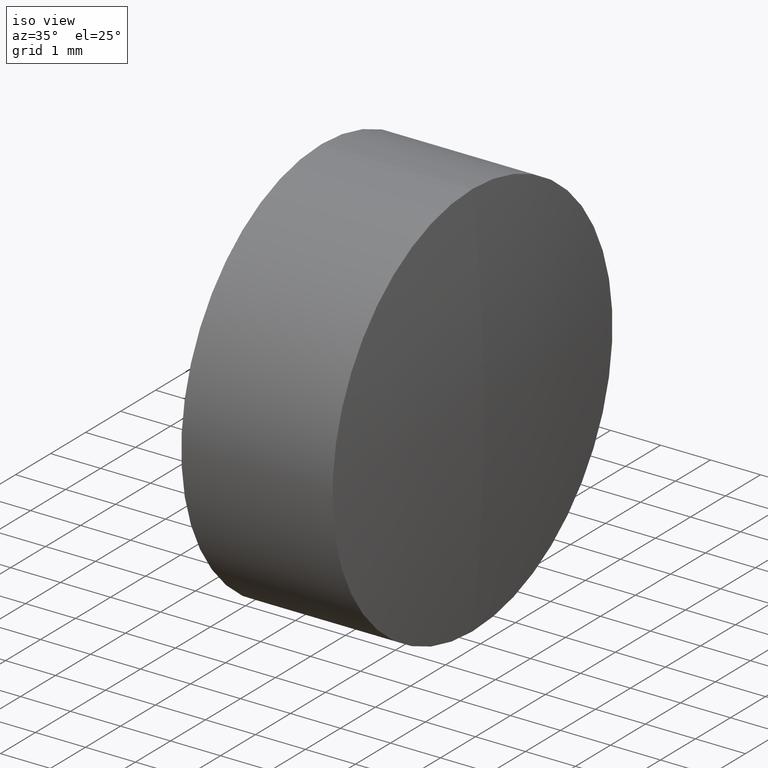
[diagram: clean part render]
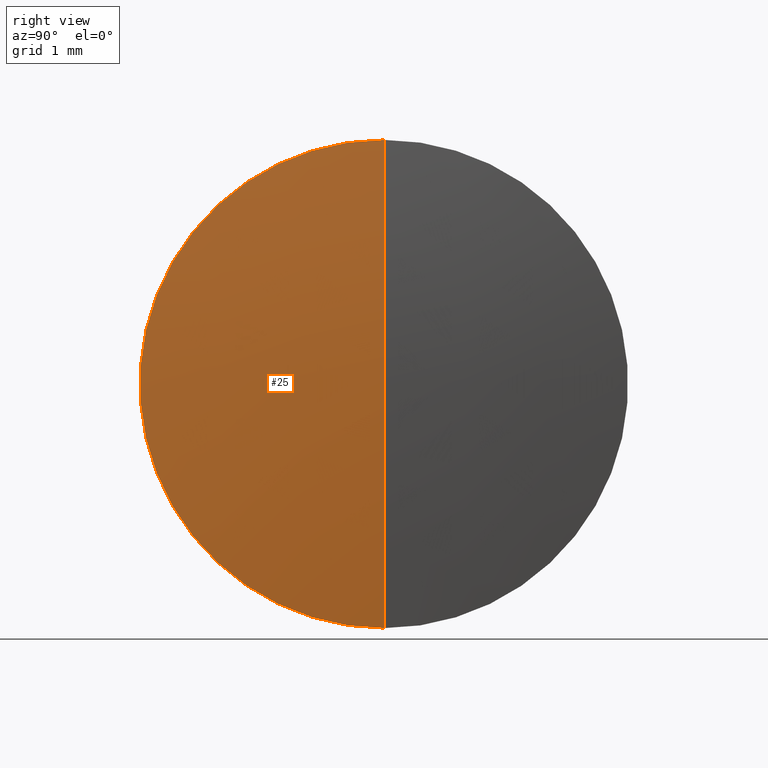
[diagram: tour spotlight — one face highlighted and labeled with its STEP entity id]
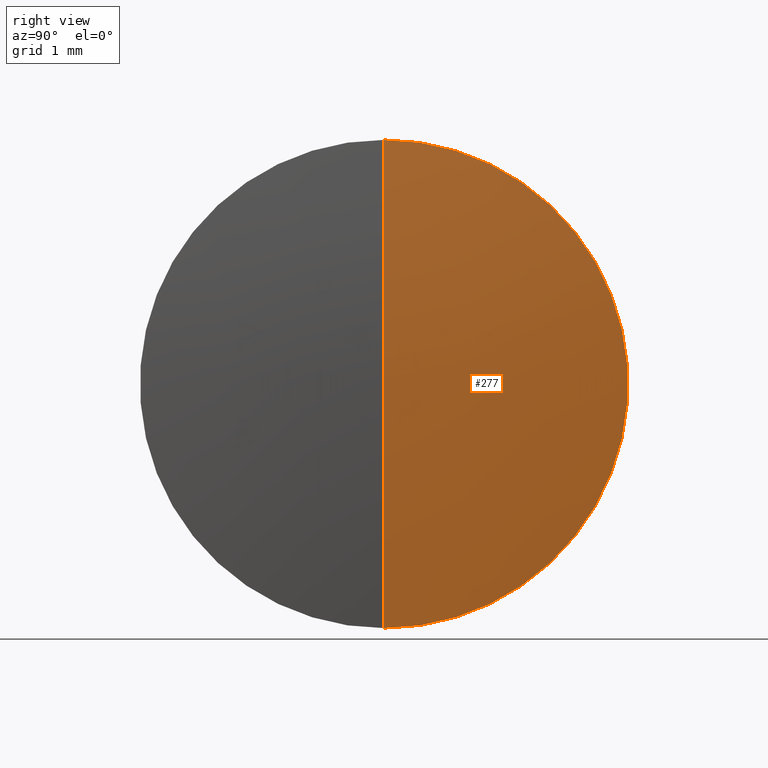
[diagram: tour spotlight — one face highlighted and labeled with its STEP entity id]
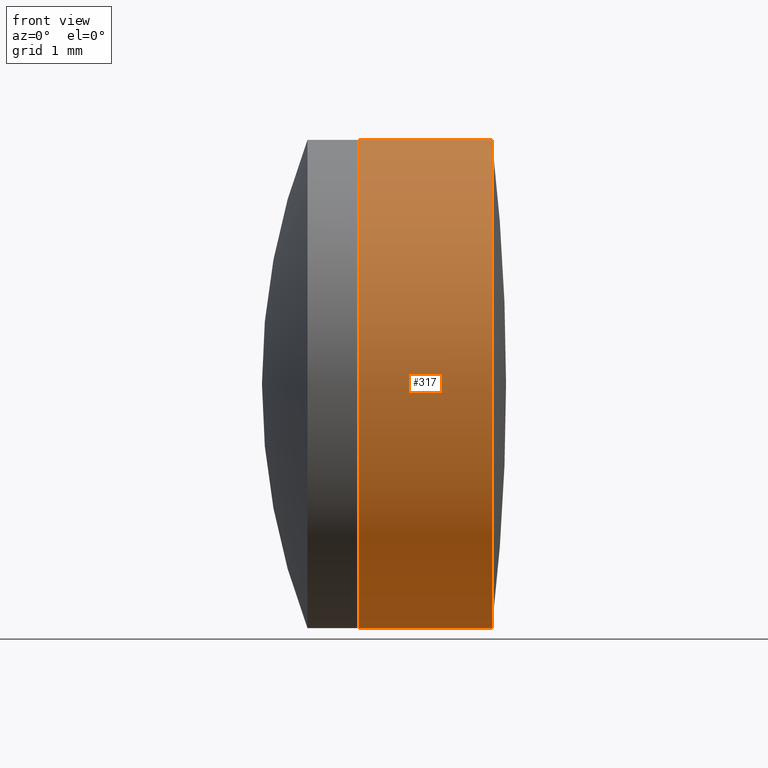
[diagram: tour spotlight — one face highlighted and labeled with its STEP entity id]
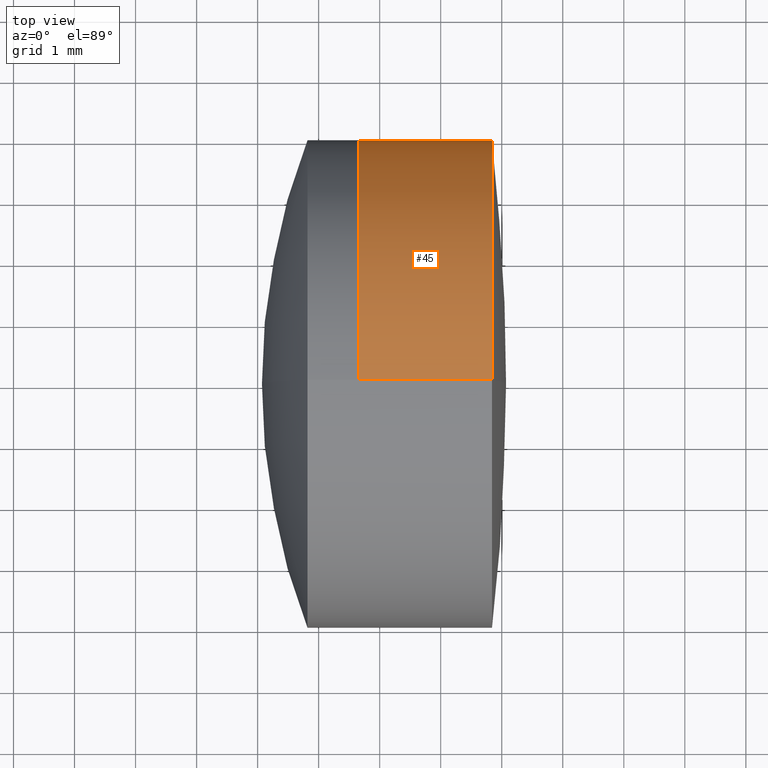
[diagram: tour spotlight — one face highlighted and labeled with its STEP entity id]
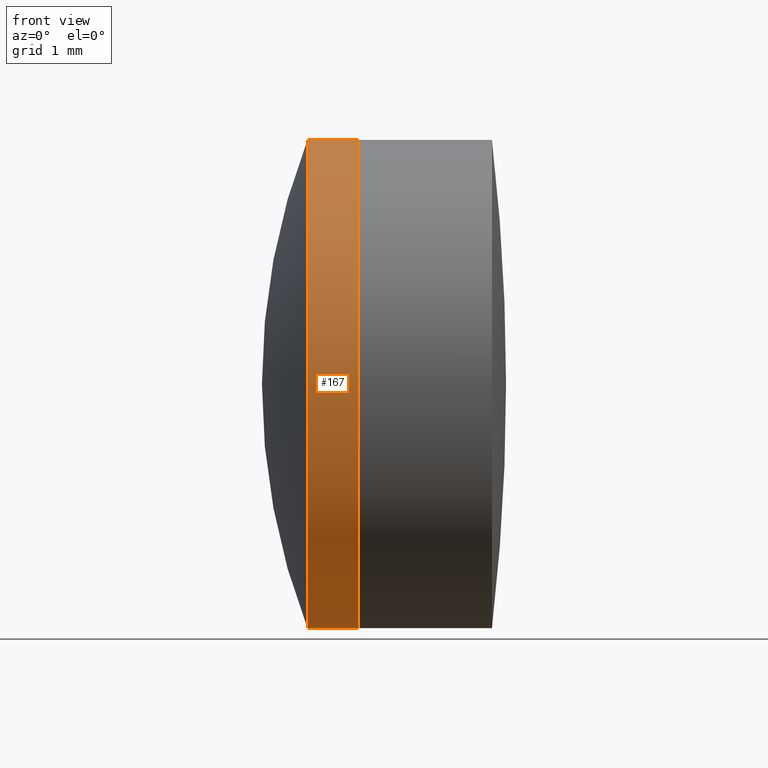
[diagram: tour spotlight — one face highlighted and labeled with its STEP entity id]
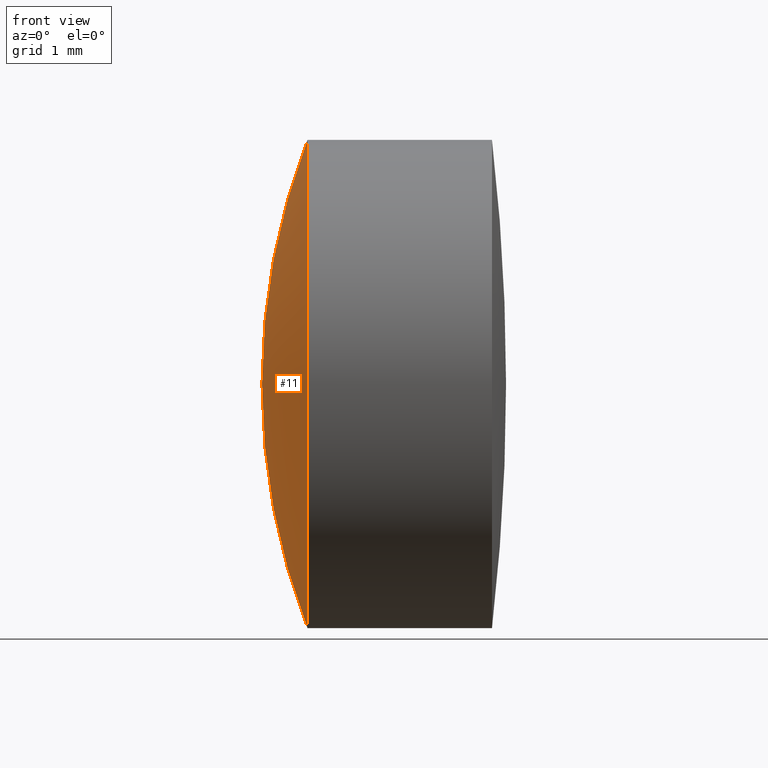
[diagram: tour spotlight — one face highlighted and labeled with its STEP entity id]
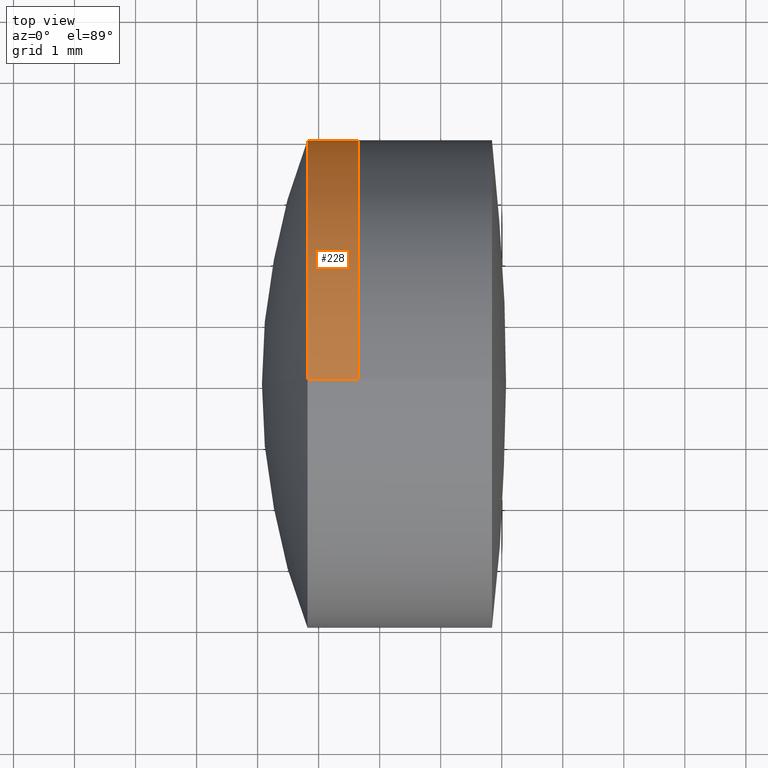
[diagram: tour spotlight — one face highlighted and labeled with its STEP entity id]
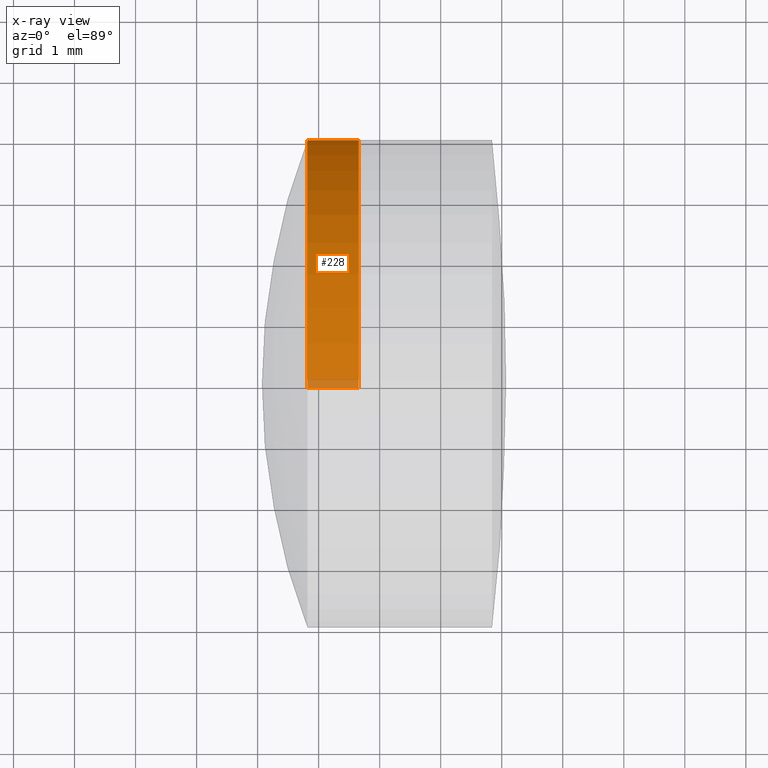
[diagram: x-ray of the same camera — body ghosted, this tour face saturated]
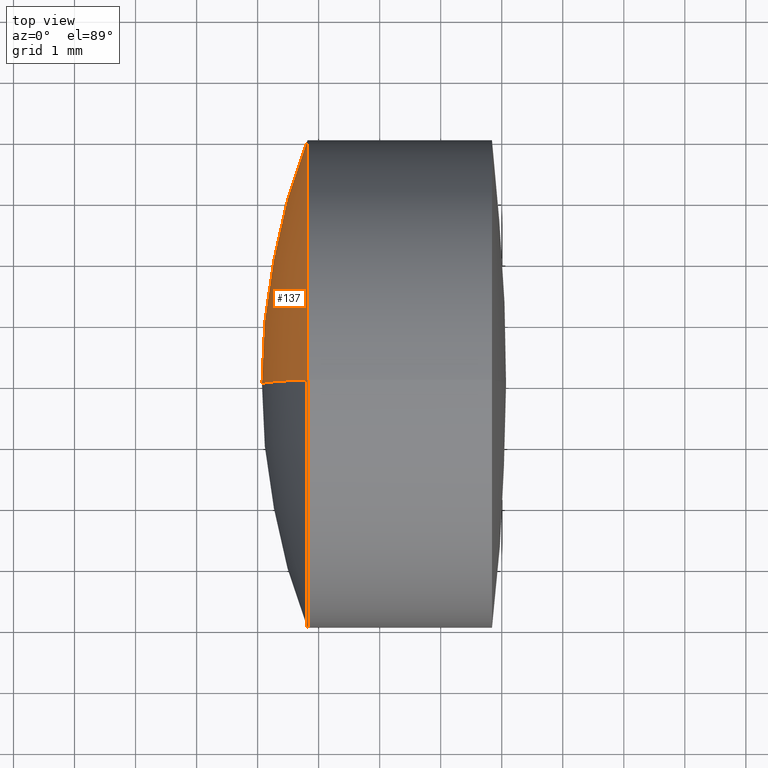
[diagram: tour spotlight — one face highlighted and labeled with its STEP entity id]
A machine part: a face-by-face anatomy tour. The part has 12 B-rep faces; the first image is the clean iso view, then the 8 largest visible faces are spotlighted one at a time (largest first), each with its STEP entity span.

Face 1 — right view, entity #25. In plain terms, the highlighted spherical surface has radius 34.8 mm.
Definition (entity closure, byte-faithful):
#18 = CIRCLE ( 'NONE', #174, 34.79999999999999700 ) ;
#25 = ADVANCED_FACE ( 'NONE', ( #175 ), #105, .T. ) ;
#31 = VERTEX_POINT ( 'NONE', #144 ) ;
#32 = CARTESIAN_POINT ( 'NONE',  ( 3.840174916095840300, 4.898587196589413800E-016, -4.000000000000000000 ) ) ;
#40 = CIRCLE ( 'NONE', #51, 4.000000000000000000 ) ;
#51 = AXIS2_PLACEMENT_3D ( 'NONE', #341, #291, #97 ) ;
#56 = DIRECTION ( 'NONE',  ( 0.0000000000000000000, 1.000000000000000000, 0.0000000000000000000 ) ) ;
#58 = CIRCLE ( 'NONE', #259, 34.79999999999999700 ) ;
#60 = DIRECTION ( 'NONE',  ( 0.0000000000000000000, 0.0000000000000000000, -1.000000000000000000 ) ) ;
#72 = AXIS2_PLACEMENT_3D ( 'NONE', #168, #56, #155 ) ;
#97 = DIRECTION ( 'NONE',  ( 0.0000000000000000000, 0.0000000000000000000, 1.000000000000000000 ) ) ;
#102 = EDGE_CURVE ( 'NONE', #31, #269, #18, .T. ) ;
#105 = SPHERICAL_SURFACE ( 'NONE', #72, 34.79999999999999700 ) ;
#120 = ORIENTED_EDGE ( 'NONE', *, *, #246, .F. ) ;
#124 = ORIENTED_EDGE ( 'NONE', *, *, #102, .T. ) ;
#132 = DIRECTION ( 'NONE',  ( 0.0000000000000000000, -1.000000000000000000, 0.0000000000000000000 ) ) ;
#144 = CARTESIAN_POINT ( 'NONE',  ( 4.070824329195886500, 0.0000000000000000000, 2.130885430516394500E-015 ) ) ;
#155 = DIRECTION ( 'NONE',  ( 0.0000000000000000000, 0.0000000000000000000, 1.000000000000000000 ) ) ;
#168 = CARTESIAN_POINT ( 'NONE',  ( -30.72917567080411100, 0.0000000000000000000, 0.0000000000000000000 ) ) ;
#174 = AXIS2_PLACEMENT_3D ( 'NONE', #342, #132, #60 ) ;
#175 = FACE_OUTER_BOUND ( 'NONE', #324, .T. ) ;
#177 = DIRECTION ( 'NONE',  ( 0.0000000000000000000, -1.224646799147353200E-016, 1.000000000000000000 ) ) ;
#220 = CARTESIAN_POINT ( 'NONE',  ( -30.72917567080411100, 0.0000000000000000000, 0.0000000000000000000 ) ) ;
#229 = EDGE_CURVE ( 'NONE', #257, #269, #40, .T. ) ;
#242 = ORIENTED_EDGE ( 'NONE', *, *, #229, .F. ) ;
#246 = EDGE_CURVE ( 'NONE', #31, #257, #58, .T. ) ;
#257 = VERTEX_POINT ( 'NONE', #32 ) ;
#259 = AXIS2_PLACEMENT_3D ( 'NONE', #220, #289, #177 ) ;
#269 = VERTEX_POINT ( 'NONE', #339 ) ;
#289 = DIRECTION ( 'NONE',  ( -0.0000000000000000000, 1.000000000000000000, 1.224646799147353200E-016 ) ) ;
#291 = DIRECTION ( 'NONE',  ( -1.000000000000000000, -0.0000000000000000000, -0.0000000000000000000 ) ) ;
#324 = EDGE_LOOP ( 'NONE', ( #120, #124, #242 ) ) ;
#339 = CARTESIAN_POINT ( 'NONE',  ( 3.840174916095840300, 0.0000000000000000000, 4.000000000000000000 ) ) ;
#341 = CARTESIAN_POINT ( 'NONE',  ( 3.840174916095840300, 0.0000000000000000000, 0.0000000000000000000 ) ) ;
#342 = CARTESIAN_POINT ( 'NONE',  ( -30.72917567080411100, 0.0000000000000000000, 0.0000000000000000000 ) ) ;

Face 2 — right view, entity #277. In plain terms, the highlighted spherical surface has radius 34.8 mm.
Definition (entity closure, byte-faithful):
#18 = CIRCLE ( 'NONE', #174, 34.79999999999999700 ) ;
#29 = CIRCLE ( 'NONE', #140, 4.000000000000000000 ) ;
#31 = VERTEX_POINT ( 'NONE', #144 ) ;
#32 = CARTESIAN_POINT ( 'NONE',  ( 3.840174916095840300, 4.898587196589413800E-016, -4.000000000000000000 ) ) ;
#58 = CIRCLE ( 'NONE', #259, 34.79999999999999700 ) ;
#60 = DIRECTION ( 'NONE',  ( 0.0000000000000000000, 0.0000000000000000000, -1.000000000000000000 ) ) ;
#69 = AXIS2_PLACEMENT_3D ( 'NONE', #299, #133, #275 ) ;
#102 = EDGE_CURVE ( 'NONE', #31, #269, #18, .T. ) ;
#127 = DIRECTION ( 'NONE',  ( -1.000000000000000000, -0.0000000000000000000, -0.0000000000000000000 ) ) ;
#132 = DIRECTION ( 'NONE',  ( 0.0000000000000000000, -1.000000000000000000, 0.0000000000000000000 ) ) ;
#133 = DIRECTION ( 'NONE',  ( 0.0000000000000000000, 1.000000000000000000, 0.0000000000000000000 ) ) ;
#140 = AXIS2_PLACEMENT_3D ( 'NONE', #305, #127, #297 ) ;
#144 = CARTESIAN_POINT ( 'NONE',  ( 4.070824329195886500, 0.0000000000000000000, 2.130885430516394500E-015 ) ) ;
#173 = ORIENTED_EDGE ( 'NONE', *, *, #246, .T. ) ;
#174 = AXIS2_PLACEMENT_3D ( 'NONE', #342, #132, #60 ) ;
#177 = DIRECTION ( 'NONE',  ( 0.0000000000000000000, -1.224646799147353200E-016, 1.000000000000000000 ) ) ;
#182 = SPHERICAL_SURFACE ( 'NONE', #69, 34.79999999999999700 ) ;
#186 = EDGE_CURVE ( 'NONE', #269, #257, #29, .T. ) ;
#193 = ORIENTED_EDGE ( 'NONE', *, *, #186, .F. ) ;
#220 = CARTESIAN_POINT ( 'NONE',  ( -30.72917567080411100, 0.0000000000000000000, 0.0000000000000000000 ) ) ;
#246 = EDGE_CURVE ( 'NONE', #31, #257, #58, .T. ) ;
#255 = FACE_OUTER_BOUND ( 'NONE', #307, .T. ) ;
#257 = VERTEX_POINT ( 'NONE', #32 ) ;
#259 = AXIS2_PLACEMENT_3D ( 'NONE', #220, #289, #177 ) ;
#269 = VERTEX_POINT ( 'NONE', #339 ) ;
#275 = DIRECTION ( 'NONE',  ( 0.0000000000000000000, 0.0000000000000000000, 1.000000000000000000 ) ) ;
#277 = ADVANCED_FACE ( 'NONE', ( #255 ), #182, .T. ) ;
#289 = DIRECTION ( 'NONE',  ( -0.0000000000000000000, 1.000000000000000000, 1.224646799147353200E-016 ) ) ;
#297 = DIRECTION ( 'NONE',  ( 0.0000000000000000000, 0.0000000000000000000, 1.000000000000000000 ) ) ;
#299 = CARTESIAN_POINT ( 'NONE',  ( -30.72917567080411100, 0.0000000000000000000, 0.0000000000000000000 ) ) ;
#305 = CARTESIAN_POINT ( 'NONE',  ( 3.840174916095840300, 0.0000000000000000000, 0.0000000000000000000 ) ) ;
#307 = EDGE_LOOP ( 'NONE', ( #327, #173, #193 ) ) ;
#327 = ORIENTED_EDGE ( 'NONE', *, *, #102, .F. ) ;
#339 = CARTESIAN_POINT ( 'NONE',  ( 3.840174916095840300, 0.0000000000000000000, 4.000000000000000000 ) ) ;
#342 = CARTESIAN_POINT ( 'NONE',  ( -30.72917567080411100, 0.0000000000000000000, 0.0000000000000000000 ) ) ;

Face 3 — front view, entity #317. In plain terms, the highlighted cylindrical surface (partial cylindrical patch) has radius 4 mm, axis along (-1, -0, -0).
Definition (entity closure, byte-faithful):
#2 = CARTESIAN_POINT ( 'NONE',  ( 1.655750400079075000, 4.898587196589417800E-016, -4.000000000000003600 ) ) ;
#3 = EDGE_LOOP ( 'NONE', ( #89, #278, #149, #163 ) ) ;
#17 = DIRECTION ( 'NONE',  ( 0.0000000000000000000, 0.0000000000000000000, 1.000000000000000000 ) ) ;
#32 = CARTESIAN_POINT ( 'NONE',  ( 3.840174916095840300, 4.898587196589413800E-016, -4.000000000000000000 ) ) ;
#40 = CIRCLE ( 'NONE', #51, 4.000000000000000000 ) ;
#42 = EDGE_CURVE ( 'NONE', #269, #263, #266, .T. ) ;
#44 = AXIS2_PLACEMENT_3D ( 'NONE', #198, #231, #88 ) ;
#51 = AXIS2_PLACEMENT_3D ( 'NONE', #341, #291, #97 ) ;
#66 = CYLINDRICAL_SURFACE ( 'NONE', #44, 4.000000000000000900 ) ;
#78 = CARTESIAN_POINT ( 'NONE',  ( -0.5519199926577972300, 0.0000000000000000000, 4.000000000000000900 ) ) ;
#81 = DIRECTION ( 'NONE',  ( -1.000000000000000000, -0.0000000000000000000, -0.0000000000000000000 ) ) ;
#88 = DIRECTION ( 'NONE',  ( 0.0000000000000000000, 0.0000000000000000000, 1.000000000000000000 ) ) ;
#89 = ORIENTED_EDGE ( 'NONE', *, *, #171, .F. ) ;
#95 = DIRECTION ( 'NONE',  ( -1.000000000000000000, -0.0000000000000000000, -0.0000000000000000000 ) ) ;
#97 = DIRECTION ( 'NONE',  ( 0.0000000000000000000, 0.0000000000000000000, 1.000000000000000000 ) ) ;
#128 = FACE_OUTER_BOUND ( 'NONE', #3, .T. ) ;
#131 = EDGE_CURVE ( 'NONE', #135, #263, #158, .T. ) ;
#135 = VERTEX_POINT ( 'NONE', #2 ) ;
#149 = ORIENTED_EDGE ( 'NONE', *, *, #42, .T. ) ;
#158 = CIRCLE ( 'NONE', #326, 4.000000000000001800 ) ;
#163 = ORIENTED_EDGE ( 'NONE', *, *, #131, .F. ) ;
#171 = EDGE_CURVE ( 'NONE', #257, #135, #330, .T. ) ;
#195 = CARTESIAN_POINT ( 'NONE',  ( 1.655750400079075000, 0.0000000000000000000, 0.0000000000000000000 ) ) ;
#198 = CARTESIAN_POINT ( 'NONE',  ( -0.5519199926577972300, 0.0000000000000000000, 0.0000000000000000000 ) ) ;
#229 = EDGE_CURVE ( 'NONE', #257, #269, #40, .T. ) ;
#231 = DIRECTION ( 'NONE',  ( -1.000000000000000000, -0.0000000000000000000, -0.0000000000000000000 ) ) ;
#257 = VERTEX_POINT ( 'NONE', #32 ) ;
#263 = VERTEX_POINT ( 'NONE', #294 ) ;
#266 = LINE ( 'NONE', #78, #322 ) ;
#269 = VERTEX_POINT ( 'NONE', #339 ) ;
#278 = ORIENTED_EDGE ( 'NONE', *, *, #229, .T. ) ;
#291 = DIRECTION ( 'NONE',  ( -1.000000000000000000, -0.0000000000000000000, -0.0000000000000000000 ) ) ;
#294 = CARTESIAN_POINT ( 'NONE',  ( 1.655750400079075000, 0.0000000000000000000, 4.000000000000003600 ) ) ;
#310 = CARTESIAN_POINT ( 'NONE',  ( -0.5519199926577972300, 4.898587196589413800E-016, -4.000000000000000900 ) ) ;
#317 = ADVANCED_FACE ( 'NONE', ( #128 ), #66, .T. ) ;
#322 = VECTOR ( 'NONE', #328, 1000.000000000000000 ) ;
#326 = AXIS2_PLACEMENT_3D ( 'NONE', #195, #95, #17 ) ;
#328 = DIRECTION ( 'NONE',  ( -1.000000000000000000, -0.0000000000000000000, -0.0000000000000000000 ) ) ;
#330 = LINE ( 'NONE', #310, #337 ) ;
#337 = VECTOR ( 'NONE', #81, 1000.000000000000000 ) ;
#339 = CARTESIAN_POINT ( 'NONE',  ( 3.840174916095840300, 0.0000000000000000000, 4.000000000000000000 ) ) ;
#341 = CARTESIAN_POINT ( 'NONE',  ( 3.840174916095840300, 0.0000000000000000000, 0.0000000000000000000 ) ) ;

Face 4 — top view, entity #45. In plain terms, the highlighted cylindrical surface (partial cylindrical patch) has radius 4 mm, axis along (-1, -0, -0).
Definition (entity closure, byte-faithful):
#2 = CARTESIAN_POINT ( 'NONE',  ( 1.655750400079075000, 4.898587196589417800E-016, -4.000000000000003600 ) ) ;
#27 = DIRECTION ( 'NONE',  ( 0.0000000000000000000, 0.0000000000000000000, 1.000000000000000000 ) ) ;
#29 = CIRCLE ( 'NONE', #140, 4.000000000000000000 ) ;
#32 = CARTESIAN_POINT ( 'NONE',  ( 3.840174916095840300, 4.898587196589413800E-016, -4.000000000000000000 ) ) ;
#35 = FACE_OUTER_BOUND ( 'NONE', #236, .T. ) ;
#42 = EDGE_CURVE ( 'NONE', #269, #263, #266, .T. ) ;
#45 = ADVANCED_FACE ( 'NONE', ( #35 ), #96, .T. ) ;
#54 = EDGE_CURVE ( 'NONE', #263, #135, #290, .T. ) ;
#59 = ORIENTED_EDGE ( 'NONE', *, *, #42, .F. ) ;
#78 = CARTESIAN_POINT ( 'NONE',  ( -0.5519199926577972300, 0.0000000000000000000, 4.000000000000000900 ) ) ;
#80 = DIRECTION ( 'NONE',  ( 0.0000000000000000000, 0.0000000000000000000, 1.000000000000000000 ) ) ;
#81 = DIRECTION ( 'NONE',  ( -1.000000000000000000, -0.0000000000000000000, -0.0000000000000000000 ) ) ;
#96 = CYLINDRICAL_SURFACE ( 'NONE', #145, 4.000000000000000900 ) ;
#126 = CARTESIAN_POINT ( 'NONE',  ( 1.655750400079075000, 0.0000000000000000000, 0.0000000000000000000 ) ) ;
#127 = DIRECTION ( 'NONE',  ( -1.000000000000000000, -0.0000000000000000000, -0.0000000000000000000 ) ) ;
#135 = VERTEX_POINT ( 'NONE', #2 ) ;
#140 = AXIS2_PLACEMENT_3D ( 'NONE', #305, #127, #297 ) ;
#142 = ORIENTED_EDGE ( 'NONE', *, *, #186, .T. ) ;
#145 = AXIS2_PLACEMENT_3D ( 'NONE', #235, #216, #27 ) ;
#159 = AXIS2_PLACEMENT_3D ( 'NONE', #126, #334, #80 ) ;
#171 = EDGE_CURVE ( 'NONE', #257, #135, #330, .T. ) ;
#186 = EDGE_CURVE ( 'NONE', #269, #257, #29, .T. ) ;
#213 = ORIENTED_EDGE ( 'NONE', *, *, #171, .T. ) ;
#216 = DIRECTION ( 'NONE',  ( -1.000000000000000000, -0.0000000000000000000, -0.0000000000000000000 ) ) ;
#235 = CARTESIAN_POINT ( 'NONE',  ( -0.5519199926577972300, 0.0000000000000000000, 0.0000000000000000000 ) ) ;
#236 = EDGE_LOOP ( 'NONE', ( #142, #213, #308, #59 ) ) ;
#257 = VERTEX_POINT ( 'NONE', #32 ) ;
#263 = VERTEX_POINT ( 'NONE', #294 ) ;
#266 = LINE ( 'NONE', #78, #322 ) ;
#269 = VERTEX_POINT ( 'NONE', #339 ) ;
#290 = CIRCLE ( 'NONE', #159, 4.000000000000001800 ) ;
#294 = CARTESIAN_POINT ( 'NONE',  ( 1.655750400079075000, 0.0000000000000000000, 4.000000000000003600 ) ) ;
#297 = DIRECTION ( 'NONE',  ( 0.0000000000000000000, 0.0000000000000000000, 1.000000000000000000 ) ) ;
#305 = CARTESIAN_POINT ( 'NONE',  ( 3.840174916095840300, 0.0000000000000000000, 0.0000000000000000000 ) ) ;
#308 = ORIENTED_EDGE ( 'NONE', *, *, #54, .F. ) ;
#310 = CARTESIAN_POINT ( 'NONE',  ( -0.5519199926577972300, 4.898587196589413800E-016, -4.000000000000000900 ) ) ;
#322 = VECTOR ( 'NONE', #328, 1000.000000000000000 ) ;
#328 = DIRECTION ( 'NONE',  ( -1.000000000000000000, -0.0000000000000000000, -0.0000000000000000000 ) ) ;
#330 = LINE ( 'NONE', #310, #337 ) ;
#334 = DIRECTION ( 'NONE',  ( -1.000000000000000000, -0.0000000000000000000, -0.0000000000000000000 ) ) ;
#337 = VECTOR ( 'NONE', #81, 1000.000000000000000 ) ;
#339 = CARTESIAN_POINT ( 'NONE',  ( 3.840174916095840300, 0.0000000000000000000, 4.000000000000000000 ) ) ;

Face 5 — front view, entity #167. In plain terms, the highlighted cylindrical surface (partial cylindrical patch) has radius 4 mm, axis along (-1, -0, -0).
Definition (entity closure, byte-faithful):
#6 = VECTOR ( 'NONE', #219, 1000.000000000000000 ) ;
#12 = AXIS2_PLACEMENT_3D ( 'NONE', #250, #165, #190 ) ;
#23 = EDGE_CURVE ( 'NONE', #208, #117, #199, .T. ) ;
#28 = ORIENTED_EDGE ( 'NONE', *, *, #153, .T. ) ;
#38 = CARTESIAN_POINT ( 'NONE',  ( -9.702612178336682500, 4.898587196589412800E-016, -4.000000000000000000 ) ) ;
#52 = CARTESIAN_POINT ( 'NONE',  ( 0.8165981388907876900, 0.0000000000000000000, -4.000000000000000000 ) ) ;
#61 = LINE ( 'NONE', #336, #122 ) ;
#71 = CARTESIAN_POINT ( 'NONE',  ( 1.655750400079076800, 0.0000000000000000000, 4.000000000000000000 ) ) ;
#82 = ORIENTED_EDGE ( 'NONE', *, *, #201, .F. ) ;
#94 = VERTEX_POINT ( 'NONE', #286 ) ;
#107 = EDGE_CURVE ( 'NONE', #208, #321, #346, .T. ) ;
#112 = CARTESIAN_POINT ( 'NONE',  ( 1.655750400079076800, 4.898587196589412800E-016, -4.000000000000000000 ) ) ;
#117 = VERTEX_POINT ( 'NONE', #71 ) ;
#122 = VECTOR ( 'NONE', #191, 1000.000000000000000 ) ;
#146 = FACE_OUTER_BOUND ( 'NONE', #261, .T. ) ;
#153 = EDGE_CURVE ( 'NONE', #117, #94, #61, .T. ) ;
#157 = DIRECTION ( 'NONE',  ( 0.0000000000000000000, 0.0000000000000000000, 1.000000000000000000 ) ) ;
#165 = DIRECTION ( 'NONE',  ( -1.000000000000000000, -0.0000000000000000000, -0.0000000000000000000 ) ) ;
#167 = ADVANCED_FACE ( 'NONE', ( #146 ), #285, .T. ) ;
#188 = ORIENTED_EDGE ( 'NONE', *, *, #23, .T. ) ;
#189 = CIRCLE ( 'NONE', #205, 4.000000000000000900 ) ;
#190 = DIRECTION ( 'NONE',  ( 0.0000000000000000000, 0.0000000000000000000, 1.000000000000000000 ) ) ;
#191 = DIRECTION ( 'NONE',  ( -1.000000000000000000, -0.0000000000000000000, -0.0000000000000000000 ) ) ;
#199 = CIRCLE ( 'NONE', #12, 4.000000000000000000 ) ;
#201 = EDGE_CURVE ( 'NONE', #321, #94, #189, .T. ) ;
#205 = AXIS2_PLACEMENT_3D ( 'NONE', #238, #241, #157 ) ;
#208 = VERTEX_POINT ( 'NONE', #112 ) ;
#219 = DIRECTION ( 'NONE',  ( -1.000000000000000000, -0.0000000000000000000, -0.0000000000000000000 ) ) ;
#238 = CARTESIAN_POINT ( 'NONE',  ( 0.8165981388907876900, 0.0000000000000000000, 0.0000000000000000000 ) ) ;
#241 = DIRECTION ( 'NONE',  ( -1.000000000000000000, -0.0000000000000000000, -0.0000000000000000000 ) ) ;
#250 = CARTESIAN_POINT ( 'NONE',  ( 1.655750400079076800, 0.0000000000000000000, 0.0000000000000000000 ) ) ;
#261 = EDGE_LOOP ( 'NONE', ( #274, #188, #28, #82 ) ) ;
#271 = AXIS2_PLACEMENT_3D ( 'NONE', #301, #314, #325 ) ;
#274 = ORIENTED_EDGE ( 'NONE', *, *, #107, .F. ) ;
#285 = CYLINDRICAL_SURFACE ( 'NONE', #271, 4.000000000000000000 ) ;
#286 = CARTESIAN_POINT ( 'NONE',  ( 0.8165981388907876900, -4.898587196589412800E-016, 4.000000000000000000 ) ) ;
#301 = CARTESIAN_POINT ( 'NONE',  ( -9.702612178336682500, 0.0000000000000000000, 0.0000000000000000000 ) ) ;
#314 = DIRECTION ( 'NONE',  ( -1.000000000000000000, -0.0000000000000000000, -0.0000000000000000000 ) ) ;
#321 = VERTEX_POINT ( 'NONE', #52 ) ;
#325 = DIRECTION ( 'NONE',  ( 0.0000000000000000000, 0.0000000000000000000, 1.000000000000000000 ) ) ;
#336 = CARTESIAN_POINT ( 'NONE',  ( -9.702612178336682500, 0.0000000000000000000, 4.000000000000000000 ) ) ;
#346 = LINE ( 'NONE', #38, #6 ) ;

Face 6 — front view, entity #11. In plain terms, the highlighted spherical surface has radius 11.1 mm.
Definition (entity closure, byte-faithful):
#5 = CARTESIAN_POINT ( 'NONE',  ( 11.17082432919588400, 0.0000000000000000000, 2.248175378683471300E-016 ) ) ;
#7 = VERTEX_POINT ( 'NONE', #234 ) ;
#11 = ADVANCED_FACE ( 'NONE', ( #316 ), #16, .T. ) ;
#13 = ORIENTED_EDGE ( 'NONE', *, *, #343, .T. ) ;
#15 = CIRCLE ( 'NONE', #161, 11.10000000000000000 ) ;
#16 = SPHERICAL_SURFACE ( 'NONE', #303, 11.10000000000000000 ) ;
#52 = CARTESIAN_POINT ( 'NONE',  ( 0.8165981388907876900, 0.0000000000000000000, -4.000000000000000000 ) ) ;
#57 = DIRECTION ( 'NONE',  ( -0.0000000000000000000, -1.000000000000000000, -0.0000000000000000000 ) ) ;
#73 = DIRECTION ( 'NONE',  ( 0.0000000000000000000, 0.0000000000000000000, -1.000000000000000000 ) ) ;
#83 = CARTESIAN_POINT ( 'NONE',  ( 11.17082432919588400, 0.0000000000000000000, 2.248175378683471300E-016 ) ) ;
#91 = EDGE_CURVE ( 'NONE', #321, #7, #15, .T. ) ;
#94 = VERTEX_POINT ( 'NONE', #286 ) ;
#156 = DIRECTION ( 'NONE',  ( 0.0000000000000000000, 1.000000000000000000, -0.0000000000000000000 ) ) ;
#157 = DIRECTION ( 'NONE',  ( 0.0000000000000000000, 0.0000000000000000000, 1.000000000000000000 ) ) ;
#161 = AXIS2_PLACEMENT_3D ( 'NONE', #5, #156, #215 ) ;
#162 = CIRCLE ( 'NONE', #210, 11.10000000000000000 ) ;
#183 = EDGE_LOOP ( 'NONE', ( #217, #13, #302 ) ) ;
#184 = CARTESIAN_POINT ( 'NONE',  ( 11.17082432919588400, 0.0000000000000000000, 2.248175378683471300E-016 ) ) ;
#189 = CIRCLE ( 'NONE', #205, 4.000000000000000900 ) ;
#201 = EDGE_CURVE ( 'NONE', #321, #94, #189, .T. ) ;
#205 = AXIS2_PLACEMENT_3D ( 'NONE', #238, #241, #157 ) ;
#210 = AXIS2_PLACEMENT_3D ( 'NONE', #83, #251, #287 ) ;
#215 = DIRECTION ( 'NONE',  ( 0.0000000000000000000, 0.0000000000000000000, 1.000000000000000000 ) ) ;
#217 = ORIENTED_EDGE ( 'NONE', *, *, #201, .T. ) ;
#234 = CARTESIAN_POINT ( 'NONE',  ( 0.07082432919588467500, 0.0000000000000000000, -4.548614356584338900E-016 ) ) ;
#238 = CARTESIAN_POINT ( 'NONE',  ( 0.8165981388907876900, 0.0000000000000000000, 0.0000000000000000000 ) ) ;
#241 = DIRECTION ( 'NONE',  ( -1.000000000000000000, -0.0000000000000000000, -0.0000000000000000000 ) ) ;
#251 = DIRECTION ( 'NONE',  ( 0.0000000000000000000, -1.000000000000000000, -1.224646799147353200E-016 ) ) ;
#286 = CARTESIAN_POINT ( 'NONE',  ( 0.8165981388907876900, -4.898587196589412800E-016, 4.000000000000000000 ) ) ;
#287 = DIRECTION ( 'NONE',  ( 0.0000000000000000000, 1.224646799147353500E-016, -1.000000000000000000 ) ) ;
#302 = ORIENTED_EDGE ( 'NONE', *, *, #91, .F. ) ;
#303 = AXIS2_PLACEMENT_3D ( 'NONE', #184, #57, #73 ) ;
#316 = FACE_OUTER_BOUND ( 'NONE', #183, .T. ) ;
#321 = VERTEX_POINT ( 'NONE', #52 ) ;
#343 = EDGE_CURVE ( 'NONE', #94, #7, #162, .T. ) ;

Face 7 — top view, entity #228. An x-ray twin of the same camera follows (body ghosted, this face saturated) — the face is partly hidden behind the body. In plain terms, the highlighted cylindrical surface (partial cylindrical patch) has radius 4 mm, axis along (-1, -0, -0).
Definition (entity closure, byte-faithful):
#4 = EDGE_CURVE ( 'NONE', #117, #208, #312, .T. ) ;
#6 = VECTOR ( 'NONE', #219, 1000.000000000000000 ) ;
#19 = AXIS2_PLACEMENT_3D ( 'NONE', #67, #20, #252 ) ;
#20 = DIRECTION ( 'NONE',  ( -1.000000000000000000, -0.0000000000000000000, -0.0000000000000000000 ) ) ;
#38 = CARTESIAN_POINT ( 'NONE',  ( -9.702612178336682500, 4.898587196589412800E-016, -4.000000000000000000 ) ) ;
#39 = AXIS2_PLACEMENT_3D ( 'NONE', #75, #233, #244 ) ;
#49 = CARTESIAN_POINT ( 'NONE',  ( 0.8165981388907876900, 0.0000000000000000000, 0.0000000000000000000 ) ) ;
#52 = CARTESIAN_POINT ( 'NONE',  ( 0.8165981388907876900, 0.0000000000000000000, -4.000000000000000000 ) ) ;
#53 = CIRCLE ( 'NONE', #87, 4.000000000000000900 ) ;
#61 = LINE ( 'NONE', #336, #122 ) ;
#67 = CARTESIAN_POINT ( 'NONE',  ( -9.702612178336682500, 0.0000000000000000000, 0.0000000000000000000 ) ) ;
#70 = ORIENTED_EDGE ( 'NONE', *, *, #93, .F. ) ;
#71 = CARTESIAN_POINT ( 'NONE',  ( 1.655750400079076800, 0.0000000000000000000, 4.000000000000000000 ) ) ;
#75 = CARTESIAN_POINT ( 'NONE',  ( 1.655750400079076800, 0.0000000000000000000, 0.0000000000000000000 ) ) ;
#87 = AXIS2_PLACEMENT_3D ( 'NONE', #49, #239, #256 ) ;
#93 = EDGE_CURVE ( 'NONE', #94, #321, #53, .T. ) ;
#94 = VERTEX_POINT ( 'NONE', #286 ) ;
#103 = EDGE_LOOP ( 'NONE', ( #129, #332, #70, #344 ) ) ;
#107 = EDGE_CURVE ( 'NONE', #208, #321, #346, .T. ) ;
#112 = CARTESIAN_POINT ( 'NONE',  ( 1.655750400079076800, 4.898587196589412800E-016, -4.000000000000000000 ) ) ;
#117 = VERTEX_POINT ( 'NONE', #71 ) ;
#122 = VECTOR ( 'NONE', #191, 1000.000000000000000 ) ;
#129 = ORIENTED_EDGE ( 'NONE', *, *, #4, .T. ) ;
#153 = EDGE_CURVE ( 'NONE', #117, #94, #61, .T. ) ;
#191 = DIRECTION ( 'NONE',  ( -1.000000000000000000, -0.0000000000000000000, -0.0000000000000000000 ) ) ;
#208 = VERTEX_POINT ( 'NONE', #112 ) ;
#219 = DIRECTION ( 'NONE',  ( -1.000000000000000000, -0.0000000000000000000, -0.0000000000000000000 ) ) ;
#228 = ADVANCED_FACE ( 'NONE', ( #245 ), #320, .T. ) ;
#233 = DIRECTION ( 'NONE',  ( -1.000000000000000000, -0.0000000000000000000, -0.0000000000000000000 ) ) ;
#239 = DIRECTION ( 'NONE',  ( -1.000000000000000000, -0.0000000000000000000, -0.0000000000000000000 ) ) ;
#244 = DIRECTION ( 'NONE',  ( 0.0000000000000000000, 0.0000000000000000000, 1.000000000000000000 ) ) ;
#245 = FACE_OUTER_BOUND ( 'NONE', #103, .T. ) ;
#252 = DIRECTION ( 'NONE',  ( 0.0000000000000000000, 0.0000000000000000000, 1.000000000000000000 ) ) ;
#256 = DIRECTION ( 'NONE',  ( 0.0000000000000000000, 0.0000000000000000000, 1.000000000000000000 ) ) ;
#286 = CARTESIAN_POINT ( 'NONE',  ( 0.8165981388907876900, -4.898587196589412800E-016, 4.000000000000000000 ) ) ;
#312 = CIRCLE ( 'NONE', #39, 4.000000000000000000 ) ;
#320 = CYLINDRICAL_SURFACE ( 'NONE', #19, 4.000000000000000000 ) ;
#321 = VERTEX_POINT ( 'NONE', #52 ) ;
#332 = ORIENTED_EDGE ( 'NONE', *, *, #107, .T. ) ;
#336 = CARTESIAN_POINT ( 'NONE',  ( -9.702612178336682500, 0.0000000000000000000, 4.000000000000000000 ) ) ;
#344 = ORIENTED_EDGE ( 'NONE', *, *, #153, .F. ) ;
#346 = LINE ( 'NONE', #38, #6 ) ;

Face 8 — top view, entity #137. In plain terms, the highlighted spherical surface has radius 11.1 mm.
Definition (entity closure, byte-faithful):
#5 = CARTESIAN_POINT ( 'NONE',  ( 11.17082432919588400, 0.0000000000000000000, 2.248175378683471300E-016 ) ) ;
#7 = VERTEX_POINT ( 'NONE', #234 ) ;
#15 = CIRCLE ( 'NONE', #161, 11.10000000000000000 ) ;
#49 = CARTESIAN_POINT ( 'NONE',  ( 0.8165981388907876900, 0.0000000000000000000, 0.0000000000000000000 ) ) ;
#52 = CARTESIAN_POINT ( 'NONE',  ( 0.8165981388907876900, 0.0000000000000000000, -4.000000000000000000 ) ) ;
#53 = CIRCLE ( 'NONE', #87, 4.000000000000000900 ) ;
#63 = ORIENTED_EDGE ( 'NONE', *, *, #93, .T. ) ;
#83 = CARTESIAN_POINT ( 'NONE',  ( 11.17082432919588400, 0.0000000000000000000, 2.248175378683471300E-016 ) ) ;
#87 = AXIS2_PLACEMENT_3D ( 'NONE', #49, #239, #256 ) ;
#91 = EDGE_CURVE ( 'NONE', #321, #7, #15, .T. ) ;
#93 = EDGE_CURVE ( 'NONE', #94, #321, #53, .T. ) ;
#94 = VERTEX_POINT ( 'NONE', #286 ) ;
#130 = FACE_OUTER_BOUND ( 'NONE', #225, .T. ) ;
#137 = ADVANCED_FACE ( 'NONE', ( #130 ), #207, .T. ) ;
#143 = CARTESIAN_POINT ( 'NONE',  ( 11.17082432919588400, 0.0000000000000000000, 2.248175378683471300E-016 ) ) ;
#151 = DIRECTION ( 'NONE',  ( 0.0000000000000000000, 0.0000000000000000000, -1.000000000000000000 ) ) ;
#156 = DIRECTION ( 'NONE',  ( 0.0000000000000000000, 1.000000000000000000, -0.0000000000000000000 ) ) ;
#161 = AXIS2_PLACEMENT_3D ( 'NONE', #5, #156, #215 ) ;
#162 = CIRCLE ( 'NONE', #210, 11.10000000000000000 ) ;
#178 = DIRECTION ( 'NONE',  ( -0.0000000000000000000, -1.000000000000000000, -0.0000000000000000000 ) ) ;
#207 = SPHERICAL_SURFACE ( 'NONE', #237, 11.10000000000000000 ) ;
#210 = AXIS2_PLACEMENT_3D ( 'NONE', #83, #251, #287 ) ;
#215 = DIRECTION ( 'NONE',  ( 0.0000000000000000000, 0.0000000000000000000, 1.000000000000000000 ) ) ;
#225 = EDGE_LOOP ( 'NONE', ( #281, #63, #273 ) ) ;
#234 = CARTESIAN_POINT ( 'NONE',  ( 0.07082432919588467500, 0.0000000000000000000, -4.548614356584338900E-016 ) ) ;
#237 = AXIS2_PLACEMENT_3D ( 'NONE', #143, #178, #151 ) ;
#239 = DIRECTION ( 'NONE',  ( -1.000000000000000000, -0.0000000000000000000, -0.0000000000000000000 ) ) ;
#251 = DIRECTION ( 'NONE',  ( 0.0000000000000000000, -1.000000000000000000, -1.224646799147353200E-016 ) ) ;
#256 = DIRECTION ( 'NONE',  ( 0.0000000000000000000, 0.0000000000000000000, 1.000000000000000000 ) ) ;
#273 = ORIENTED_EDGE ( 'NONE', *, *, #91, .T. ) ;
#281 = ORIENTED_EDGE ( 'NONE', *, *, #343, .F. ) ;
#286 = CARTESIAN_POINT ( 'NONE',  ( 0.8165981388907876900, -4.898587196589412800E-016, 4.000000000000000000 ) ) ;
#287 = DIRECTION ( 'NONE',  ( 0.0000000000000000000, 1.224646799147353500E-016, -1.000000000000000000 ) ) ;
#321 = VERTEX_POINT ( 'NONE', #52 ) ;
#343 = EDGE_CURVE ( 'NONE', #94, #7, #162, .T. ) ;